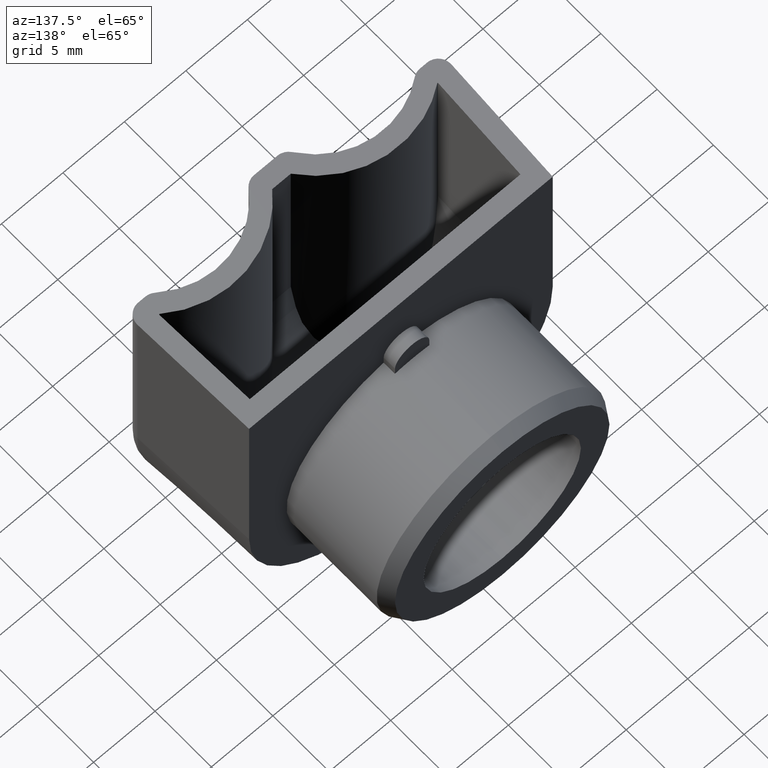
[diagram: clean part render]
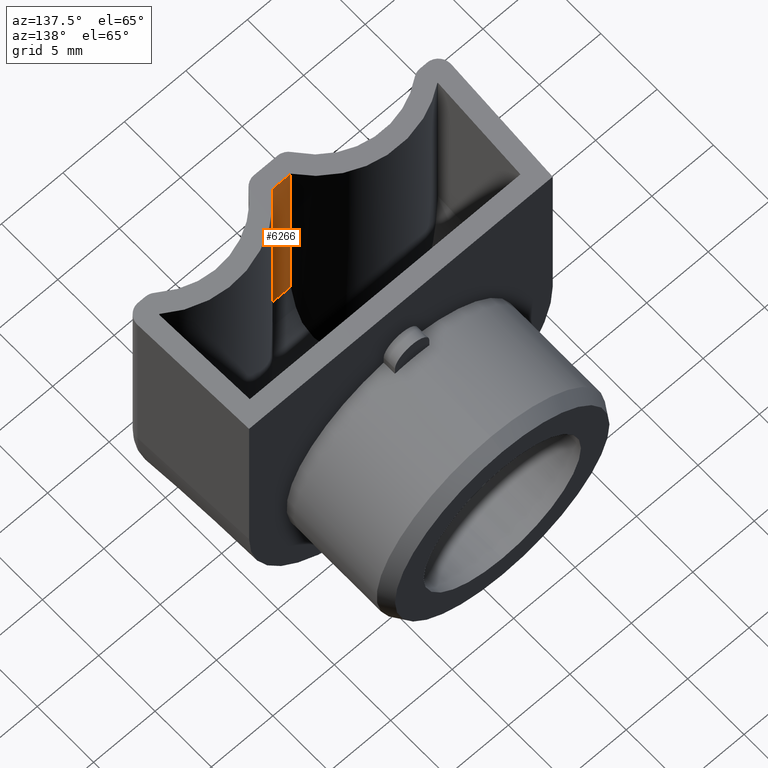
[diagram: same view with one face highlighted and labeled with its STEP entity id]
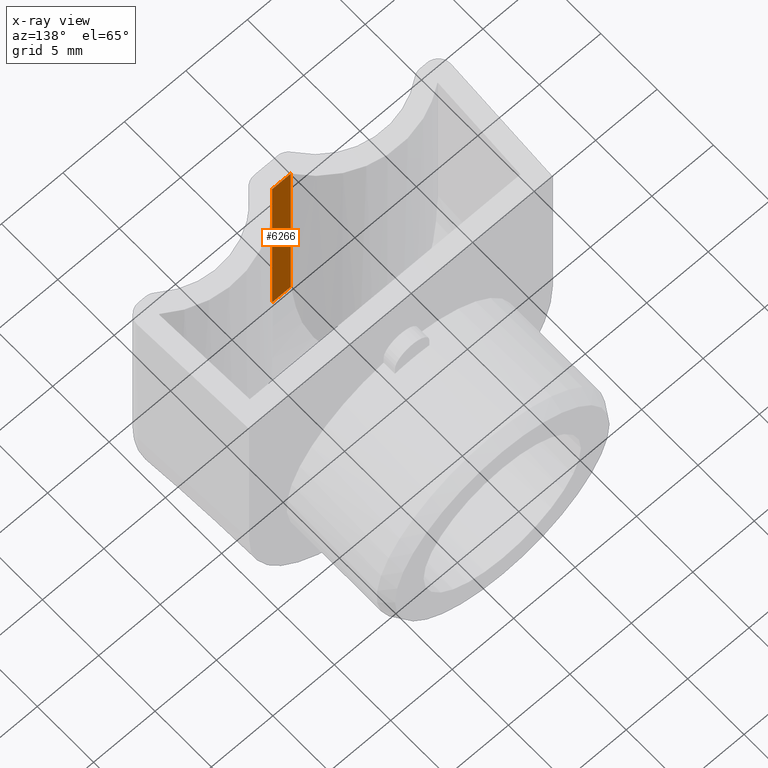
[diagram: x-ray of the same camera — body ghosted, the highlighted face saturated]
A machine part, auxiliary view. The second image highlights one B-rep face of the part: STEP entity #6266.
The next image is the same camera in x-ray: the body ghosted, the highlighted face saturated — about 0% of this face is hidden behind the body in this view.
In plain terms, the highlighted planar face has unit normal (0, 1, -0).
Its self-contained STEP definition (entity closure, byte-faithful):
#178 = CARTESIAN_POINT ( 'NONE',  ( 0.7572065390866917800, -10.60000000000008100, 16.11280599483022500 ) ) ;
#436 = DIRECTION ( 'NONE',  ( 2.220446049250313100E-016, 4.544217445503875200E-016, 1.000000000000000000 ) ) ;
#437 = VECTOR ( 'NONE', #436, 1000.000000000000000 ) ;
#438 = CARTESIAN_POINT ( 'NONE',  ( 0.7572065390866901100, -10.60000000000008100, 0.06112532007186699500 ) ) ;
#439 = LINE ( 'NONE', #438, #437 ) ;
#440 = DIRECTION ( 'NONE',  ( 2.220446049250313100E-016, 4.544217445503875200E-016, 1.000000000000000000 ) ) ;
#441 = VECTOR ( 'NONE', #440, 1000.000000000000000 ) ;
#442 = CARTESIAN_POINT ( 'NONE',  ( -0.7572065390867039900, -10.59999999999999800, 0.06112532007190169000 ) ) ;
#443 = LINE ( 'NONE', #442, #441 ) ;
#2836 = DIRECTION ( 'NONE',  ( 1.000000000000000000, 5.691522477153217300E-016, 2.220446049250311600E-016 ) ) ;
#2837 = CARTESIAN_POINT ( 'NONE',  ( 3.469446951953614200E-015, -10.59999999999999800, 16.11280599483022500 ) ) ;
#2838 = LINE ( 'NONE', #2837, #2840 ) ;
#2840 = VECTOR ( 'NONE', #2836, 1000.000000000000000 ) ;
#3017 = CARTESIAN_POINT ( 'NONE',  ( 0.7572065390866901100, -10.60000000000008100, 0.06112532007186699500 ) ) ;
#3018 = DIRECTION ( 'NONE',  ( 1.000000000000000000, 5.726216946672753500E-016, 2.220446049250311600E-016 ) ) ;
#3019 = VECTOR ( 'NONE', #3018, 1000.000000000000000 ) ;
#3020 = CARTESIAN_POINT ( 'NONE',  ( 1.734723475976807100E-015, -10.59999999999999800, 0.06112532007190169000 ) ) ;
#3021 = LINE ( 'NONE', #3020, #3019 ) ;
#3022 = CARTESIAN_POINT ( 'NONE',  ( -0.7572065390867039900, -10.59999999999999800, 0.06112532007190169000 ) ) ;
#3023 = DIRECTION ( 'NONE',  ( 2.220446049250313100E-016, 4.544217445503875200E-016, 1.000000000000000000 ) ) ;
#3024 = DIRECTION ( 'NONE',  ( 5.622133538114146000E-016, 1.000000000000000000, -4.544217445503876200E-016 ) ) ;
#3025 = CARTESIAN_POINT ( 'NONE',  ( -5.204170427930421300E-015, -10.59999999999999800, -6.938893903907228400E-015 ) ) ;
#3026 = AXIS2_PLACEMENT_3D ( 'NONE', #3025, #3024, #3023 ) ;
#3027 = PLANE ( 'NONE',  #3026 ) ;
#3028 = FACE_OUTER_BOUND ( 'NONE', #6267, .T. ) ;
#3066 = CARTESIAN_POINT ( 'NONE',  ( -0.7572065390867056500, -10.59999999999999800, 16.11280599483022500 ) ) ;
#5999 = VERTEX_POINT ( 'NONE', #178 ) ;
#6118 = EDGE_CURVE ( 'NONE', #6269, #6293, #443, .T. ) ;
#6119 = ORIENTED_EDGE ( 'NONE', *, *, #6161, .T. ) ;
#6120 = ORIENTED_EDGE ( 'NONE', *, *, #6121, .F. ) ;
#6121 = EDGE_CURVE ( 'NONE', #6271, #5999, #439, .T. ) ;
#6161 = EDGE_CURVE ( 'NONE', #6293, #5999, #2838, .T. ) ;
#6266 = ADVANCED_FACE ( 'NONE', ( #3028 ), #3027, .T. ) ;
#6267 = EDGE_LOOP ( 'NONE', ( #6268, #6272, #6119, #6120 ) ) ;
#6268 = ORIENTED_EDGE ( 'NONE', *, *, #6270, .F. ) ;
#6269 = VERTEX_POINT ( 'NONE', #3022 ) ;
#6270 = EDGE_CURVE ( 'NONE', #6269, #6271, #3021, .T. ) ;
#6271 = VERTEX_POINT ( 'NONE', #3017 ) ;
#6272 = ORIENTED_EDGE ( 'NONE', *, *, #6118, .T. ) ;
#6293 = VERTEX_POINT ( 'NONE', #3066 ) ;